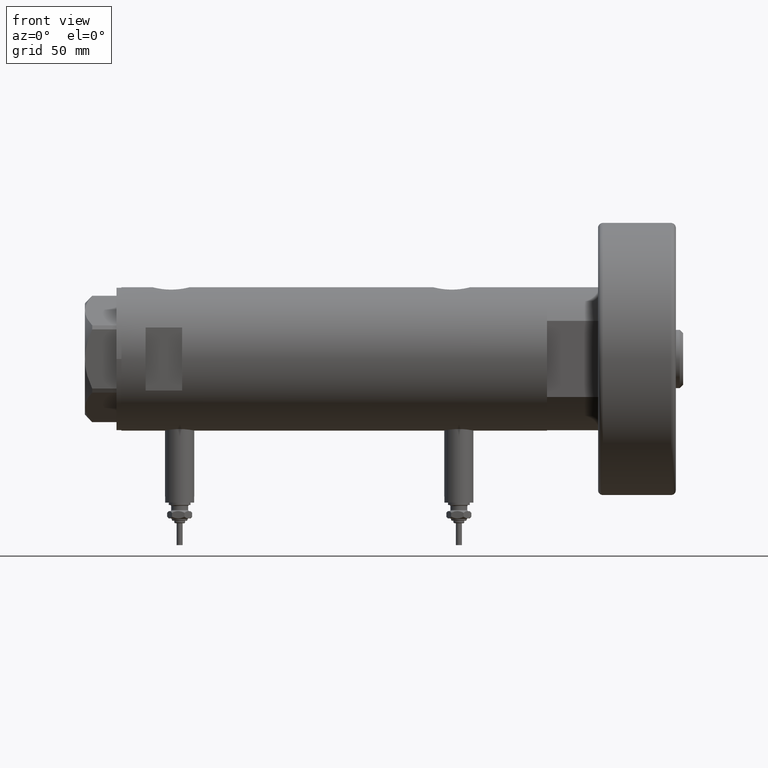
[diagram: clean part render]
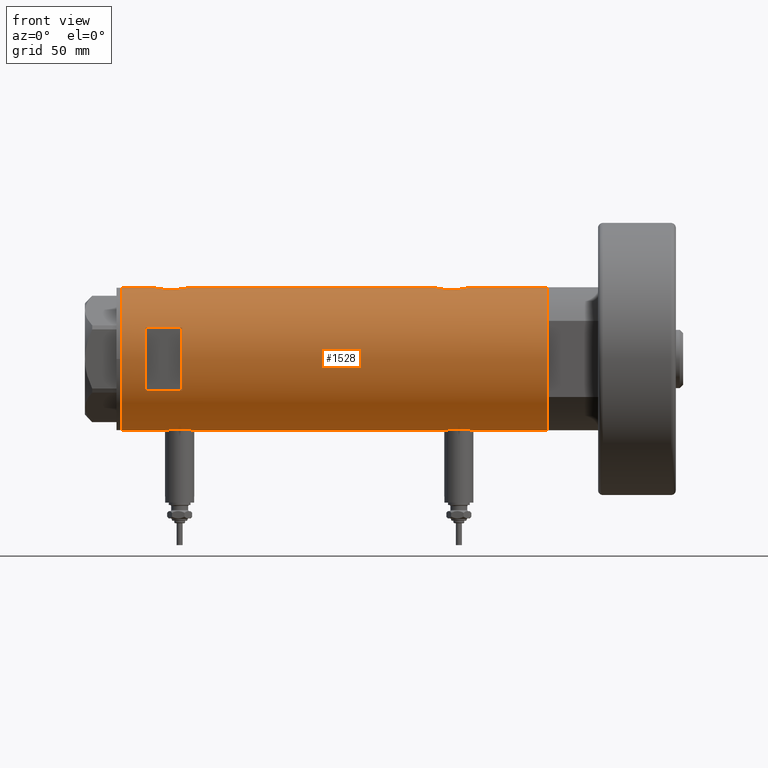
[diagram: same view with one face highlighted and labeled with its STEP entity id]
A machine part, front view. The second image highlights one B-rep face of the part: STEP entity #1528.
In plain terms, the highlighted cylindrical surface (partial cylindrical patch) has radius 29.5 mm, axis along (-1, -0, 0).
Its self-contained STEP definition (entity closure, byte-faithful):
#16 = CARTESIAN_POINT ( 'NONE',  ( 28.86290657878785737, -6.099358034152089658, -52.77130670042607363 ) ) ;
#32 = CARTESIAN_POINT ( 'NONE',  ( 28.55627543367308618, -7.402134446380869370, 68.33219650318235949 ) ) ;
#47 = CARTESIAN_POINT ( 'NONE',  ( 28.98740664105171305, -5.478212189394655596, -53.52819516185792281 ) ) ;
#48 = DIRECTION ( 'NONE',  ( 0.000000000000000000, 0.000000000000000000, 1.000000000000000000 ) ) ;
#56 = CARTESIAN_POINT ( 'NONE',  ( -29.50000000000000355, -1.989795151372050188E-15, -45.04999999999999005 ) ) ;
#81 = CARTESIAN_POINT ( 'NONE',  ( 29.40305664607911140, -2.432276947006147605, -55.51147801006586491 ) ) ;
#82 = CARTESIAN_POINT ( 'NONE',  ( -29.33479068874799722, -3.136645782783865410, 69.02155254614469015 ) ) ;
#111 = CARTESIAN_POINT ( 'NONE',  ( -29.45566469296798928, -1.628675872921093726, 69.63756032628675996 ) ) ;
#117 = CARTESIAN_POINT ( 'NONE',  ( -29.33428005013168871, -3.127775714777722982, -56.71493203872592659 ) ) ;
#124 = CARTESIAN_POINT ( 'NONE',  ( 29.49999999999999289, -0.4976091310423251812, 59.59999999999998721 ) ) ;
#160 = CARTESIAN_POINT ( 'NONE',  ( 28.72151714661535848, -6.735173278284142917, 70.43640470570873902 ) ) ;
#177 = EDGE_CURVE ( 'NONE', #4939, #4916, #5566, .T. ) ;
#183 = CARTESIAN_POINT ( 'NONE',  ( -29.12311479234994849, -4.702282052053738504, -47.17776471113516124 ) ) ;
#208 = CARTESIAN_POINT ( 'NONE',  ( -28.96072448608914840, -5.617106371651694907, 66.37082731660440515 ) ) ;
#267 = CARTESIAN_POINT ( 'NONE',  ( -29.50000000000000355, 3.612706708267620518E-15, -57.55000000000000426 ) ) ;
#286 = ORIENTED_EDGE ( 'NONE', *, *, #2499, .T. ) ;
#359 = EDGE_CURVE ( 'NONE', #1598, #1539, #5720, .T. ) ;
#376 = VECTOR ( 'NONE', #1175, 1000.000000000000000 ) ;
#396 = CARTESIAN_POINT ( 'NONE',  ( 29.50000000000000355, -8.867894669064240341E-21, 74.59999999999999432 ) ) ;
#408 = CARTESIAN_POINT ( 'NONE',  ( -29.50000000000000355, -3.685106651658548747E-16, 69.84999999999999432 ) ) ;
#409 = CARTESIAN_POINT ( 'NONE',  ( 0.000000000000000000, 0.000000000000000000, -87.59999999999999432 ) ) ;
#436 = CARTESIAN_POINT ( 'NONE',  ( 29.08294968506023537, -4.955368226349206040, -42.74903281801533694 ) ) ;
#437 = CARTESIAN_POINT ( 'NONE',  ( -28.85437274499025762, -6.138402965889063978, 62.37243403294917954 ) ) ;
#473 = CARTESIAN_POINT ( 'NONE',  ( -29.37055817176824490, -2.766456155496578084, 57.99186392411088775 ) ) ;
#537 = CARTESIAN_POINT ( 'NONE',  ( 29.05028789344173745, -5.134328181356786480, -53.87246457606267569 ) ) ;
#538 = CARTESIAN_POINT ( 'NONE',  ( -29.25427426731712544, -3.815048240656437439, 58.63259231846663511 ) ) ;
#544 = CARTESIAN_POINT ( 'NONE',  ( -29.49128673965872238, -0.8227026017531590130, -45.09075558927904126 ) ) ;
#572 = ORIENTED_EDGE ( 'NONE', *, *, #4041, .F. ) ;
#577 = CARTESIAN_POINT ( 'NONE',  ( -29.33479068874800433, -3.136645782783870295, -45.87844745385529421 ) ) ;
#600 = CARTESIAN_POINT ( 'NONE',  ( 28.72051071455671334, -6.739402597165489617, -51.72718973703752710 ) ) ;
#608 = CARTESIAN_POINT ( 'NONE',  ( -29.49152014567325253, -0.8152473631539818300, -57.51035294833331335 ) ) ;
#614 = CARTESIAN_POINT ( 'NONE',  ( 28.72051071455672044, -6.739402597165490505, 63.77281026296248712 ) ) ;
#628 = CARTESIAN_POINT ( 'NONE',  ( -29.50000000000000355, -3.685106651658548747E-16, 69.84999999999999432 ) ) ;
#640 = CARTESIAN_POINT ( 'NONE',  ( 28.95592074821773210, -5.641779806288288235, 62.15226504197970314 ) ) ;
#641 = DIRECTION ( 'NONE',  ( -0.000000000000000000, -4.625929269271487689E-15, 1.000000000000000000 ) ) ;
#654 = B_SPLINE_CURVE_WITH_KNOTS ( 'NONE', 3,
 ( #1885, #1462, #2421, #886, #3808, #5752, #1406, #4356, #5277, #920, #436, #2382, #6302, #1954, #657, #5909, #3084, #3437, #1979, #4390, #3467, #5848, #3025, #1497, #2012, #3994, #4960, #600, #4896, #16, #3939, #2070, #47, #537, #5975, #2544, #5016, #5370, #2480, #81, #4028, #4415, #2960, #1045 ),
 .UNSPECIFIED., .F., .F.,
 ( 4, 2, 2, 2, 2, 2, 2, 2, 2, 2, 2, 2, 2, 2, 2, 2, 2, 2, 2, 2, 2, 4 ),
 ( 0.02354540741801906811, 0.02501659793198015777, 0.02648778844594124743, 0.02722338370292179052, 0.02795897895990233362, 0.02943016947386341287, 0.03016576473084396290, 0.03090135998782451293, 0.03237255050178562688, 0.03384374101574673388, 0.03457933627272730126, 0.03531493152970786864, 0.03678612204366901728, 0.03825731255763017286, 0.03972850307159132843, 0.04046409832857190969, 0.04119969358555249095, 0.04193528884253308608, 0.04267088409951366734, 0.04414207461347482986, 0.04561326512743600625, 0.04708445564139716877 ),
 .UNSPECIFIED. ) ;
#657 = CARTESIAN_POINT ( 'NONE',  ( 28.86327882047615034, -6.097569254709688913, -44.02632909088551827 ) ) ;
#666 = CARTESIAN_POINT ( 'NONE',  ( -28.83260549167351527, -6.239494599049535850, -51.71615084301800636 ) ) ;
#685 = LINE ( 'NONE', #4088, #5638 ) ;
#756 = DIRECTION ( 'NONE',  ( 0.000000000000000000, 0.000000000000000000, 1.000000000000000000 ) ) ;
#774 = VERTEX_POINT ( 'NONE', #4273 ) ;
#829 = LINE ( 'NONE', #2300, #2595 ) ;
#886 = CARTESIAN_POINT ( 'NONE',  ( 29.43922820968270671, -1.954457150219038208, -41.14210652754225350 ) ) ;
#920 = CARTESIAN_POINT ( 'NONE',  ( 29.14531914445117522, -4.579221598645967006, -42.44009767007190703 ) ) ;
#939 = DIRECTION ( 'NONE',  ( 0.000000000000000000, 0.000000000000000000, 1.000000000000000000 ) ) ;
#994 = ORIENTED_EDGE ( 'NONE', *, *, #2147, .T. ) ;
#1014 = B_SPLINE_CURVE_WITH_KNOTS ( 'NONE', 3,
 ( #1500, #2834, #1925, #3374, #4897, #5788, #473, #3438, #5371, #538, #1886, #3940, #2866, #3313, #5247, #5757, #3846, #1407, #437, #2383, #4323, #6269, #5976, #3492, #5495, #4509, #208, #3562, #3529, #2545, #4457, #4484, #4545, #5017, #82, #3996, #5427, #2988, #111, #1166, #5524, #2044, #628 ),
 .UNSPECIFIED., .F., .F.,
 ( 4, 2, 2, 2, 2, 2, 2, 2, 2, 1, 2, 2, 2, 2, 2, 2, 2, 2, 2, 2, 2, 4 ),
 ( 0.01959598605283711936, 0.02082041500883364399, 0.02204484396483016861, 0.02265705844282843093, 0.02326927292082668977, 0.02449370187682321787, 0.02571813083281974943, 0.02694255978881627753, 0.02755477426681453290, 0.02816698874481278828, 0.02877920322281106447, 0.02939141770080933719, 0.03061584665680588957, 0.03184027561280244195, 0.03306470456879899433, 0.03367691904679727399, 0.03428913352479554671, 0.03551356248079207134, 0.03673799143678858903, 0.03735020591478684787, 0.03796242039278510672, 0.03918684934878163828 ),
 .UNSPECIFIED. ) ;
#1033 = CARTESIAN_POINT ( 'NONE',  ( 28.95619957017310853, -5.640369376407880608, 72.04939726490175644 ) ) ;
#1035 = DIRECTION ( 'NONE',  ( 1.776356839400250267E-15, 1.000000000000000000, 4.704334850106595203E-15 ) ) ;
#1045 = CARTESIAN_POINT ( 'NONE',  ( 29.50000000000000355, -1.363453657738827866E-15, -55.89999999999999858 ) ) ;
#1052 = ORIENTED_EDGE ( 'NONE', *, *, #1559, .F. ) ;
#1053 = CARTESIAN_POINT ( 'NONE',  ( -29.50000000000000355, 3.612708057484692393E-15, -87.59999999999999432 ) ) ;
#1062 = CARTESIAN_POINT ( 'NONE',  ( 28.59279484545187344, -7.260293545345771982, 65.15593442015531878 ) ) ;
#1071 = DIRECTION ( 'NONE',  ( 0.000000000000000000, 0.000000000000000000, 1.000000000000000000 ) ) ;
#1084 = CARTESIAN_POINT ( 'NONE',  ( -29.05872136210574297, -5.084685578900233871, -47.65990008091242203 ) ) ;
#1094 = CARTESIAN_POINT ( 'NONE',  ( 29.17410189149616428, -4.377709617224024186, 61.00524172523977740 ) ) ;
#1098 = ORIENTED_EDGE ( 'NONE', *, *, #4333, .F. ) ;
#1118 = CARTESIAN_POINT ( 'NONE',  ( -29.37055817176825556, -2.766456155496577196, -56.90813607588912504 ) ) ;
#1145 = CARTESIAN_POINT ( 'NONE',  ( -28.99856997507319534, -5.420860550814444956, -54.43723012145802187 ) ) ;
#1166 = CARTESIAN_POINT ( 'NONE',  ( -29.46613381094001127, -1.427468570127964798, 69.68827540540398502 ) ) ;
#1175 = DIRECTION ( 'NONE',  ( 0.000000000000000000, 0.000000000000000000, 1.000000000000000000 ) ) ;
#1341 = VERTEX_POINT ( 'NONE', #5210 ) ;
#1356 = CARTESIAN_POINT ( 'NONE',  ( -29.50000000000000355, 3.612708057484692393E-15, -87.59999999999999432 ) ) ;
#1390 = CARTESIAN_POINT ( 'NONE',  ( 29.40378957563274298, -2.423455993307769951, 74.21449460115982788 ) ) ;
#1406 = CARTESIAN_POINT ( 'NONE',  ( 29.31311917412636348, -3.322476152549152406, -41.67157014735705189 ) ) ;
#1407 = CARTESIAN_POINT ( 'NONE',  ( -28.87532468301956712, -6.038983942005351047, 61.97670632311463379 ) ) ;
#1441 = ORIENTED_EDGE ( 'NONE', *, *, #2223, .F. ) ;
#1449 = DIRECTION ( 'NONE',  ( -0.000000000000000000, 0.000000000000000000, -1.000000000000000000 ) ) ;
#1462 = CARTESIAN_POINT ( 'NONE',  ( 29.50000000000001066, -0.4905639552620955079, -40.89999999999999858 ) ) ;
#1497 = CARTESIAN_POINT ( 'NONE',  ( 28.53064705443910043, -7.500145243772282200, -48.89244703291117844 ) ) ;
#1500 = CARTESIAN_POINT ( 'NONE',  ( -29.50000000000000355, 3.612706708236066082E-15, 57.34999999999998721 ) ) ;
#1517 = CARTESIAN_POINT ( 'NONE',  ( 28.54347630091234933, -7.451827970232792531, 66.11943218216043761 ) ) ;
#1528 = ADVANCED_FACE ( 'NONE', ( #4833, #5305 ), #5816, .T. ) ;
#1539 = VERTEX_POINT ( 'NONE', #1980 ) ;
#1542 = CARTESIAN_POINT ( 'NONE',  ( -29.46613381094001483, -1.427468570127977010, -45.21172459459599935 ) ) ;
#1559 = EDGE_CURVE ( 'NONE', #1539, #5188, #1014, .T. ) ;
#1574 = CARTESIAN_POINT ( 'NONE',  ( 29.23250901027695647, -3.968959760999262176, 73.46846017287660402 ) ) ;
#1598 = VERTEX_POINT ( 'NONE', #3060 ) ;
#1608 = CARTESIAN_POINT ( 'NONE',  ( 29.14531914445117167, -4.579221598645962565, 73.05990232992806455 ) ) ;
#1632 = CARTESIAN_POINT ( 'NONE',  ( -28.84137202824161861, -6.198846007008993908, -52.12388261123874145 ) ) ;
#1661 = ORIENTED_EDGE ( 'NONE', *, *, #5019, .F. ) ;
#1665 = VERTEX_POINT ( 'NONE', #3247 ) ;
#1707 = ORIENTED_EDGE ( 'NONE', *, *, #177, .F. ) ;
#1785 = ORIENTED_EDGE ( 'NONE', *, *, #2032, .T. ) ;
#1789 = CIRCLE ( 'NONE', #4212, 29.50000000000000355 ) ;
#1867 = CARTESIAN_POINT ( 'NONE',  ( 0.000000000000000000, 0.000000000000000000, 77.60000000000002274 ) ) ;
#1871 = CARTESIAN_POINT ( 'NONE',  ( 29.43922820968270671, -1.954457150219034434, 74.35789347245773229 ) ) ;
#1885 = CARTESIAN_POINT ( 'NONE',  ( 29.50000000000000355, -8.867894669064240341E-21, -40.89999999999999858 ) ) ;
#1886 = CARTESIAN_POINT ( 'NONE',  ( -29.21108587560690495, -4.128853169727751293, 58.89032723090409149 ) ) ;
#1925 = CARTESIAN_POINT ( 'NONE',  ( -29.49152014567325253, -0.8152473631539829402, 57.38964705166666391 ) ) ;
#1941 = ORIENTED_EDGE ( 'NONE', *, *, #2762, .F. ) ;
#1954 = CARTESIAN_POINT ( 'NONE',  ( 28.89374408016308848, -5.952042782108791563, -43.83015462974033483 ) ) ;
#1979 = CARTESIAN_POINT ( 'NONE',  ( 28.59337635119608123, -7.258007499531542450, -46.44783774348638872 ) ) ;
#1980 = CARTESIAN_POINT ( 'NONE',  ( -29.50000000000000355, 3.612706708236066082E-15, 57.34999999999998721 ) ) ;
#1983 = VERTEX_POINT ( 'NONE', #4021 ) ;
#1997 = CARTESIAN_POINT ( 'NONE',  ( 28.59337635119608123, -7.258007499531540674, 69.05216225651359707 ) ) ;
#2008 = AXIS2_PLACEMENT_3D ( 'NONE', #5964, #2782, #6093 ) ;
#2012 = CARTESIAN_POINT ( 'NONE',  ( 28.54347630091233867, -7.451827970232786313, -49.38056781783959792 ) ) ;
#2021 = CARTESIAN_POINT ( 'NONE',  ( -28.89999183068148625, -5.919812056825922042, -53.31500238835418060 ) ) ;
#2032 = EDGE_CURVE ( 'NONE', #4362, #774, #5010, .T. ) ;
#2044 = CARTESIAN_POINT ( 'NONE',  ( -29.50000000000000000, -0.4141077724969871032, 69.85000000000000853 ) ) ;
#2050 = CARTESIAN_POINT ( 'NONE',  ( -29.45566469296797507, -1.628675872921105938, -45.26243967371323862 ) ) ;
#2070 = CARTESIAN_POINT ( 'NONE',  ( 28.95592074821772854, -5.641779806288289123, -53.34773495802030396 ) ) ;
#2077 = VERTEX_POINT ( 'NONE', #267 ) ;
#2078 = CARTESIAN_POINT ( 'NONE',  ( -29.21016169868139656, -4.135295259288792380, -46.59609911913489810 ) ) ;
#2124 = CARTESIAN_POINT ( 'NONE',  ( 29.48742104091791560, -0.9879539515379935910, 59.64904301646021167 ) ) ;
#2128 = VERTEX_POINT ( 'NONE', #1356 ) ;
#2145 = EDGE_LOOP ( 'NONE', ( #1941, #994, #1785, #2324, #286, #1441, #3477, #572, #6246, #1052, #2366, #1661 ) ) ;
#2146 = CARTESIAN_POINT ( 'NONE',  ( -29.45797511864983420, -1.625450914296657334, -57.34905127530046087 ) ) ;
#2147 = EDGE_CURVE ( 'NONE', #2128, #4362, #5322, .T. ) ;
#2223 = EDGE_CURVE ( 'NONE', #1341, #1665, #5636, .T. ) ;
#2251 = CARTESIAN_POINT ( 'NONE',  ( 29.50000000000000355, 0.000000000000000000, -87.59999999999999432 ) ) ;
#2300 = CARTESIAN_POINT ( 'NONE',  ( 29.50000000000000355, 0.000000000000000000, -87.59999999999999432 ) ) ;
#2324 = ORIENTED_EDGE ( 'NONE', *, *, #5288, .F. ) ;
#2332 = VERTEX_POINT ( 'NONE', #2439 ) ;
#2346 = CARTESIAN_POINT ( 'NONE',  ( 29.48775985681159284, -0.9798361908152555255, 74.55230443881325186 ) ) ;
#2366 = ORIENTED_EDGE ( 'NONE', *, *, #359, .F. ) ;
#2371 = CARTESIAN_POINT ( 'NONE',  ( 29.50000000000001066, -0.4905639552620957300, 74.59999999999998010 ) ) ;
#2382 = CARTESIAN_POINT ( 'NONE',  ( 28.98816846638396072, -5.474212100855873508, -43.26747840116693311 ) ) ;
#2383 = CARTESIAN_POINT ( 'NONE',  ( -28.84137202824161150, -6.198846007008987691, 62.77611738876123582 ) ) ;
#2401 = CARTESIAN_POINT ( 'NONE',  ( 29.50000000000000355, 0.000000000000000000, -87.59999999999999432 ) ) ;
#2421 = CARTESIAN_POINT ( 'NONE',  ( 29.48775985681159284, -0.9798361908152568578, -40.94769556118675524 ) ) ;
#2439 = CARTESIAN_POINT ( 'NONE',  ( -12.96148139681573319, -26.49999999999998934, 62.59999999999998721 ) ) ;
#2442 = CARTESIAN_POINT ( 'NONE',  ( 29.31311917412636348, -3.322476152549144413, 73.82842985264291258 ) ) ;
#2480 = CARTESIAN_POINT ( 'NONE',  ( 29.31438578683259522, -3.335040812377227937, -55.13547276843772238 ) ) ;
#2486 = CARTESIAN_POINT ( 'NONE',  ( -29.50000000000000355, 3.612706708267620518E-15, -57.55000000000000426 ) ) ;
#2499 = EDGE_CURVE ( 'NONE', #2683, #1665, #829, .T. ) ;
#2532 = CARTESIAN_POINT ( 'NONE',  ( 29.05028789344172324, -5.134328181356783816, 61.62753542393731010 ) ) ;
#2544 = CARTESIAN_POINT ( 'NONE',  ( 29.14351131874355261, -4.576283785862462317, -54.34705324848517449 ) ) ;
#2545 = CARTESIAN_POINT ( 'NONE',  ( -29.08006251441183565, -4.961575945539723698, 67.40618502052524263 ) ) ;
#2551 = CARTESIAN_POINT ( 'NONE',  ( -28.83028160285195440, -6.250189016175739631, -50.89032996785321927 ) ) ;
#2558 = CARTESIAN_POINT ( 'NONE',  ( 29.40305664607911140, -2.432276947006145829, 59.98852198993411378 ) ) ;
#2578 = CARTESIAN_POINT ( 'NONE',  ( -28.91427970886711307, -5.849862889315922132, -53.50993133128852008 ) ) ;
#2587 = CARTESIAN_POINT ( 'NONE',  ( 29.14351131874355971, -4.576283785862454323, 61.15294675151478287 ) ) ;
#2595 = VECTOR ( 'NONE', #2904, 1000.000000000000000 ) ;
#2613 = CARTESIAN_POINT ( 'NONE',  ( -28.96072448608914485, -5.617106371651703789, -48.52917268339558632 ) ) ;
#2683 = VERTEX_POINT ( 'NONE', #4572 ) ;
#2708 = VECTOR ( 'NONE', #2864, 1000.000000000000000 ) ;
#2715 = ORIENTED_EDGE ( 'NONE', *, *, #2721, .F. ) ;
#2719 = CARTESIAN_POINT ( 'NONE',  ( -29.50000000000000355, 3.612708057484692393E-15, 87.59999999999999432 ) ) ;
#2721 = EDGE_CURVE ( 'NONE', #5311, #2332, #5169, .T. ) ;
#2729 = EDGE_CURVE ( 'NONE', #1341, #1983, #4629, .T. ) ;
#2762 = EDGE_CURVE ( 'NONE', #2128, #2077, #685, .T. ) ;
#2782 = DIRECTION ( 'NONE',  ( 0.000000000000000000, 0.000000000000000000, 1.000000000000000000 ) ) ;
#2789 = AXIS2_PLACEMENT_3D ( 'NONE', #5296, #939, #4760 ) ;
#2834 = CARTESIAN_POINT ( 'NONE',  ( -29.50000000000000711, -0.4084468586314314309, 57.35000000000000142 ) ) ;
#2864 = DIRECTION ( 'NONE',  ( 0.000000000000000000, 0.000000000000000000, 1.000000000000000000 ) ) ;
#2866 = CARTESIAN_POINT ( 'NONE',  ( -29.07948744859177026, -4.968520850090769159, 59.78663632621105961 ) ) ;
#2880 = EDGE_CURVE ( 'NONE', #2332, #4939, #1789, .T. ) ;
#2892 = DIRECTION ( 'NONE',  ( 1.000000000000000000, 0.000000000000000000, 0.000000000000000000 ) ) ;
#2900 = VERTEX_POINT ( 'NONE', #2719 ) ;
#2904 = DIRECTION ( 'NONE',  ( 0.000000000000000000, 0.000000000000000000, 1.000000000000000000 ) ) ;
#2960 = CARTESIAN_POINT ( 'NONE',  ( 29.50000000000000711, -0.4976091310423220726, -55.89999999999999858 ) ) ;
#2977 = CARTESIAN_POINT ( 'NONE',  ( 29.50000000000000355, -2.136503572369537054E-15, 59.59999999999999432 ) ) ;
#2988 = CARTESIAN_POINT ( 'NONE',  ( -29.43130053621386111, -2.021711243143687664, 69.51755045960182144 ) ) ;
#3006 = CARTESIAN_POINT ( 'NONE',  ( 28.89374847711160754, -5.952001739005052805, 62.53016018920364161 ) ) ;
#3023 = B_SPLINE_CURVE_WITH_KNOTS ( 'NONE', 3,
 ( #2486, #5890, #608, #2146, #3535, #5379, #1118, #117, #4073, #5470, #4516, #3065, #4933, #1145, #5982, #2578, #2021, #3500, #4998, #1632, #666, #3567, #2551, #3947, #4489, #4002, #2613, #5500, #1084, #4552, #183, #4967, #2078, #6013, #577, #3445, #4905, #5947, #2050, #1542, #544, #4424, #56 ),
 .UNSPECIFIED., .F., .F.,
 ( 4, 2, 2, 2, 2, 2, 2, 2, 2, 1, 2, 2, 2, 2, 2, 2, 2, 2, 2, 2, 2, 4 ),
 ( 0.01959598605283713324, 0.02082041500883365093, 0.02204484396483016515, 0.02265705844282842399, 0.02326927292082667936, 0.02449370187682318317, 0.02571813083281968698, 0.02694255978881619079, 0.02755477426681445310, 0.02816698874481271542, 0.02877920322281097426, 0.02939141770080923657, 0.03061584665680577855, 0.03184027561280232399, 0.03306470456879886943, 0.03367691904679714215, 0.03428913352479541488, 0.03551356248079197420, 0.03673799143678854046, 0.03735020591478682705, 0.03796242039278510672, 0.03918684934878167297 ),
 .UNSPECIFIED. ) ;
#3025 = CARTESIAN_POINT ( 'NONE',  ( 28.53070445389874976, -7.499926890973428684, -48.15046579487084699 ) ) ;
#3043 = CARTESIAN_POINT ( 'NONE',  ( 28.62983003203746435, -7.114781472982441457, 64.67726941146263187 ) ) ;
#3060 = CARTESIAN_POINT ( 'NONE',  ( -29.50000000000000355, -1.989795151372050188E-15, -45.04999999999999005 ) ) ;
#3065 = CARTESIAN_POINT ( 'NONE',  ( -29.12379578281189296, -4.705261494361431041, -55.43387957720276660 ) ) ;
#3071 = CARTESIAN_POINT ( 'NONE',  ( 28.98816846638396427, -5.474212100855878838, 72.23252159883305978 ) ) ;
#3084 = CARTESIAN_POINT ( 'NONE',  ( 28.72151714661536204, -6.735173278284145582, -45.06359529429126098 ) ) ;
#3103 = CARTESIAN_POINT ( 'NONE',  ( -12.96148139681573319, -26.49999999999999645, -87.59999999999999432 ) ) ;
#3247 = CARTESIAN_POINT ( 'NONE',  ( 29.50000000000000355, -2.136503572369537054E-15, 59.59999999999999432 ) ) ;
#3313 = CARTESIAN_POINT ( 'NONE',  ( -28.99856997507319534, -5.420860550814439627, 60.46276987854197671 ) ) ;
#3325 = CIRCLE ( 'NONE', #2008, 29.50000000000000355 ) ;
#3328 = EDGE_LOOP ( 'NONE', ( #3471, #2715, #1098, #1707 ) ) ;
#3374 = CARTESIAN_POINT ( 'NONE',  ( -29.45797511864983420, -1.625450914296658667, 57.55094872469953060 ) ) ;
#3404 = VECTOR ( 'NONE', #6096, 1000.000000000000000 ) ;
#3437 = CARTESIAN_POINT ( 'NONE',  ( 28.62986945670068550, -7.114680680403729696, -45.97606223993307850 ) ) ;
#3438 = CARTESIAN_POINT ( 'NONE',  ( -29.33428005013169226, -3.127775714777723426, 58.18506796127407199 ) ) ;
#3445 = CARTESIAN_POINT ( 'NONE',  ( -29.37136442049237317, -2.777615426151012201, -45.68634887377884013 ) ) ;
#3457 = CARTESIAN_POINT ( 'NONE',  ( 28.98740664105171660, -5.478212189394656484, 61.97180483814205587 ) ) ;
#3467 = CARTESIAN_POINT ( 'NONE',  ( 28.54678862679669038, -7.438514536388029619, -47.41041725679210828 ) ) ;
#3471 = ORIENTED_EDGE ( 'NONE', *, *, #2880, .F. ) ;
#3477 = ORIENTED_EDGE ( 'NONE', *, *, #2729, .T. ) ;
#3492 = CARTESIAN_POINT ( 'NONE',  ( -28.83909499632370199, -6.209928350489659188, 64.41617781082960903 ) ) ;
#3500 = CARTESIAN_POINT ( 'NONE',  ( -28.87532468301956357, -6.038983942005355487, -52.92329367688535768 ) ) ;
#3511 = CARTESIAN_POINT ( 'NONE',  ( 28.53399451186755087, -7.487442594623177961, 67.59897485501115000 ) ) ;
#3529 = CARTESIAN_POINT ( 'NONE',  ( -29.05872136210575363, -5.084685578900223213, 67.24009991908759787 ) ) ;
#3535 = CARTESIAN_POINT ( 'NONE',  ( -29.43333839972900634, -2.017691896334575574, -57.22935989047839200 ) ) ;
#3562 = CARTESIAN_POINT ( 'NONE',  ( -28.99772237063718094, -5.425436006677728074, 66.72962674552641715 ) ) ;
#3567 = CARTESIAN_POINT ( 'NONE',  ( -28.83034328164761462, -6.249904501012249369, -51.50914539564058003 ) ) ;
#3608 = DIRECTION ( 'NONE',  ( 0.000000000000000000, 0.000000000000000000, 1.000000000000000000 ) ) ;
#3808 = CARTESIAN_POINT ( 'NONE',  ( 29.40378957563275009, -2.423455993307766398, -41.28550539884014370 ) ) ;
#3846 = CARTESIAN_POINT ( 'NONE',  ( -28.89999183068147559, -5.919812056825914048, 61.58499761164581798 ) ) ;
#3923 = CARTESIAN_POINT ( 'NONE',  ( 28.53064705443911464, -7.500145243772284864, 66.60755296708883577 ) ) ;
#3939 = CARTESIAN_POINT ( 'NONE',  ( 28.89374847711160399, -5.952001739005051917, -52.96983981079635129 ) ) ;
#3940 = CARTESIAN_POINT ( 'NONE',  ( -29.12379578281188586, -4.705261494361431041, 59.46612042279722488 ) ) ;
#3947 = CARTESIAN_POINT ( 'NONE',  ( -28.83909499632370199, -6.209928350489668958, -50.48382218917042508 ) ) ;
#3994 = CARTESIAN_POINT ( 'NONE',  ( 28.59279484545186989, -7.260293545345763100, -50.34406557984473096 ) ) ;
#3996 = CARTESIAN_POINT ( 'NONE',  ( -29.37136442049236962, -2.777615426151009981, 69.21365112622116555 ) ) ;
#4002 = CARTESIAN_POINT ( 'NONE',  ( -28.89828397447510255, -5.929977241120610643, -49.28388047758001989 ) ) ;
#4012 = CARTESIAN_POINT ( 'NONE',  ( 29.26166309680877475, -3.765013078516707967, 60.59489767946936212 ) ) ;
#4021 = CARTESIAN_POINT ( 'NONE',  ( 29.50000000000000355, 0.000000000000000000, 87.59999999999999432 ) ) ;
#4028 = CARTESIAN_POINT ( 'NONE',  ( 29.43916859571211120, -1.954329820671499407, -55.65764479242087504 ) ) ;
#4041 = EDGE_CURVE ( 'NONE', #2900, #1983, #3325, .T. ) ;
#4048 = CARTESIAN_POINT ( 'NONE',  ( 28.53070445389874621, -7.499926890973428684, 67.34953420512916011 ) ) ;
#4073 = CARTESIAN_POINT ( 'NONE',  ( -29.31475612970062627, -3.305202271067059883, -56.60847868843855224 ) ) ;
#4088 = CARTESIAN_POINT ( 'NONE',  ( -29.50000000000000355, 3.612708057484692393E-15, -87.59999999999999432 ) ) ;
#4110 = VECTOR ( 'NONE', #5044, 1000.000000000000000 ) ;
#4212 = AXIS2_PLACEMENT_3D ( 'NONE', #5510, #641, #1035 ) ;
#4273 = CARTESIAN_POINT ( 'NONE',  ( 29.50000000000000355, -1.363453657738827866E-15, -55.89999999999999858 ) ) ;
#4323 = CARTESIAN_POINT ( 'NONE',  ( -28.83260549167351527, -6.239494599049532297, 63.18384915698199933 ) ) ;
#4333 = EDGE_CURVE ( 'NONE', #4916, #5311, #4336, .T. ) ;
#4336 = CIRCLE ( 'NONE', #4846, 29.50000000000000355 ) ;
#4356 = CARTESIAN_POINT ( 'NONE',  ( 29.26065241255352589, -3.756597382275444819, -41.90395565180811133 ) ) ;
#4362 = VERTEX_POINT ( 'NONE', #2401 ) ;
#4390 = CARTESIAN_POINT ( 'NONE',  ( 28.55627543367308618, -7.402134446380870259, -47.16780349681763340 ) ) ;
#4404 = CARTESIAN_POINT ( 'NONE',  ( 28.86327882047615034, -6.097569254709694242, 71.47367090911446041 ) ) ;
#4415 = CARTESIAN_POINT ( 'NONE',  ( 29.48742104091792982, -0.9879539515379943682, -55.85095698353980964 ) ) ;
#4424 = CARTESIAN_POINT ( 'NONE',  ( -29.50000000000000711, -0.4141077724969866591, -45.04999999999999005 ) ) ;
#4457 = CARTESIAN_POINT ( 'NONE',  ( -29.12311479234994493, -4.702282052053730510, 67.72223528886479471 ) ) ;
#4463 = LINE ( 'NONE', #1053, #376 ) ;
#4471 = CARTESIAN_POINT ( 'NONE',  ( 29.43916859571210409, -1.954329820671502960, 59.84235520757910365 ) ) ;
#4483 = CARTESIAN_POINT ( 'NONE',  ( -12.96148139681573319, -26.49999999999998934, 77.60000000000002274 ) ) ;
#4484 = CARTESIAN_POINT ( 'NONE',  ( -29.14490888978862770, -4.565669626908225531, 67.87298179876214022 ) ) ;
#4489 = CARTESIAN_POINT ( 'NONE',  ( -28.87288655002252113, -6.050870399762851015, -49.68249459278194990 ) ) ;
#4509 = CARTESIAN_POINT ( 'NONE',  ( -28.89828397447510255, -5.929977241120604425, 65.61611952241995027 ) ) ;
#4516 = CARTESIAN_POINT ( 'NONE',  ( -29.21108587560690495, -4.128853169727750405, -56.00967276909590709 ) ) ;
#4526 = CARTESIAN_POINT ( 'NONE',  ( 29.31438578683260232, -3.335040812377226604, 60.36452723156224920 ) ) ;
#4535 = CARTESIAN_POINT ( 'NONE',  ( 29.50000000000000355, 0.000000000000000000, -87.59999999999999432 ) ) ;
#4545 = CARTESIAN_POINT ( 'NONE',  ( -29.21016169868140366, -4.135295259288787051, 68.30390088086507205 ) ) ;
#4552 = CARTESIAN_POINT ( 'NONE',  ( -29.08006251441182854, -4.961575945539730803, -47.49381497947474884 ) ) ;
#4572 = CARTESIAN_POINT ( 'NONE',  ( 29.50000000000000355, -8.867894669064240341E-21, -40.89999999999999858 ) ) ;
#4629 = LINE ( 'NONE', #2251, #4110 ) ;
#4760 = DIRECTION ( 'NONE',  ( 1.000000000000000000, 0.000000000000000000, 0.000000000000000000 ) ) ;
#4782 = CARTESIAN_POINT ( 'NONE',  ( 12.96148139681573319, -26.49999999999998934, 77.60000000000002274 ) ) ;
#4810 = CARTESIAN_POINT ( 'NONE',  ( 12.96148139681573319, -26.49999999999998934, 62.59999999999998721 ) ) ;
#4833 = FACE_OUTER_BOUND ( 'NONE', #2145, .T. ) ;
#4846 = AXIS2_PLACEMENT_3D ( 'NONE', #1867, #1449, #6217 ) ;
#4854 = CARTESIAN_POINT ( 'NONE',  ( 29.33743940633120673, -3.100990836771692294, 73.93327512439066140 ) ) ;
#4896 = CARTESIAN_POINT ( 'NONE',  ( 28.77424839213763264, -6.509286280845835826, -52.15781251605955759 ) ) ;
#4897 = CARTESIAN_POINT ( 'NONE',  ( -29.43333839972900634, -2.017691896334577351, 57.67064010952157105 ) ) ;
#4905 = CARTESIAN_POINT ( 'NONE',  ( -29.41741605749266952, -2.213861184585005137, -45.45168825548628178 ) ) ;
#4916 = VERTEX_POINT ( 'NONE', #4782 ) ;
#4933 = CARTESIAN_POINT ( 'NONE',  ( -29.07948744859177381, -4.968520850090770935, -55.11336367378893186 ) ) ;
#4939 = VERTEX_POINT ( 'NONE', #4810 ) ;
#4960 = CARTESIAN_POINT ( 'NONE',  ( 28.62983003203746080, -7.114781472982439681, -50.82273058853737524 ) ) ;
#4967 = CARTESIAN_POINT ( 'NONE',  ( -29.14490888978862415, -4.565669626908229084, -47.02701820123782994 ) ) ;
#4978 = CARTESIAN_POINT ( 'NONE',  ( 28.77424839213764329, -6.509286280845849149, 63.34218748394043530 ) ) ;
#4998 = CARTESIAN_POINT ( 'NONE',  ( -28.85437274499025406, -6.138402965889069307, -52.52756596705081904 ) ) ;
#5004 = CARTESIAN_POINT ( 'NONE',  ( 28.77541267587657003, -6.504036106227640168, 70.86628550135910132 ) ) ;
#5010 = LINE ( 'NONE', #4535, #5224 ) ;
#5016 = CARTESIAN_POINT ( 'NONE',  ( 29.17410189149616428, -4.377709617224021521, -54.49475827476019418 ) ) ;
#5017 = CARTESIAN_POINT ( 'NONE',  ( -29.25361239466581154, -3.820294933898098488, 68.56357989714038581 ) ) ;
#5019 = EDGE_CURVE ( 'NONE', #2077, #1598, #3023, .T. ) ;
#5044 = DIRECTION ( 'NONE',  ( 0.000000000000000000, 0.000000000000000000, 1.000000000000000000 ) ) ;
#5060 = EDGE_CURVE ( 'NONE', #5188, #2900, #4463, .T. ) ;
#5139 = VECTOR ( 'NONE', #756, 1000.000000000000000 ) ;
#5169 = LINE ( 'NONE', #3103, #3404 ) ;
#5188 = VERTEX_POINT ( 'NONE', #408 ) ;
#5210 = CARTESIAN_POINT ( 'NONE',  ( 29.50000000000000355, -8.867894669064240341E-21, 74.59999999999999432 ) ) ;
#5224 = VECTOR ( 'NONE', #1071, 1000.000000000000000 ) ;
#5244 = CARTESIAN_POINT ( 'NONE',  ( -29.50000000000000355, 3.612708057484692393E-15, -87.59999999999999432 ) ) ;
#5247 = CARTESIAN_POINT ( 'NONE',  ( -28.96147498926091046, -5.613273026676365518, 60.82107301657418930 ) ) ;
#5277 = CARTESIAN_POINT ( 'NONE',  ( 29.23250901027695647, -3.968959760999266617, -42.03153982712338177 ) ) ;
#5288 = EDGE_CURVE ( 'NONE', #2683, #774, #654, .T. ) ;
#5296 = CARTESIAN_POINT ( 'NONE',  ( 0.000000000000000000, 0.000000000000000000, -87.59999999999999432 ) ) ;
#5305 = FACE_BOUND ( 'NONE', #3328, .T. ) ;
#5311 = VERTEX_POINT ( 'NONE', #4483 ) ;
#5322 = CIRCLE ( 'NONE', #2789, 29.50000000000000355 ) ;
#5357 = CARTESIAN_POINT ( 'NONE',  ( 28.86290657878784671, -6.099358034152101204, 62.72869329957394058 ) ) ;
#5370 = CARTESIAN_POINT ( 'NONE',  ( 29.26166309680877475, -3.765013078516705303, -54.90510232053061657 ) ) ;
#5371 = CARTESIAN_POINT ( 'NONE',  ( -29.31475612970062983, -3.305202271067059439, 58.29152131156144634 ) ) ;
#5379 = CARTESIAN_POINT ( 'NONE',  ( -29.38738983525001558, -2.582042051636497693, -56.99535171595380945 ) ) ;
#5388 = CARTESIAN_POINT ( 'NONE',  ( 29.08168479815707386, -4.954011967599708299, 61.46372631484727833 ) ) ;
#5414 = CARTESIAN_POINT ( 'NONE',  ( 29.08294968506023181, -4.955368226349210481, 72.75096718198464885 ) ) ;
#5427 = CARTESIAN_POINT ( 'NONE',  ( -29.41741605749265887, -2.213861184585002917, 69.44831174451371680 ) ) ;
#5448 = CARTESIAN_POINT ( 'NONE',  ( 28.62986945670069261, -7.114680680403731472, 69.52393776006691439 ) ) ;
#5470 = CARTESIAN_POINT ( 'NONE',  ( -29.25427426731712188, -3.815048240656438772, -56.26740768153337058 ) ) ;
#5495 = CARTESIAN_POINT ( 'NONE',  ( -28.87288655002252113, -6.050870399762837692, 65.21750540721804157 ) ) ;
#5500 = CARTESIAN_POINT ( 'NONE',  ( -28.99772237063718094, -5.425436006677739620, -48.17037325447357432 ) ) ;
#5510 = CARTESIAN_POINT ( 'NONE',  ( 0.000000000000000000, 0.000000000000000000, 62.60000000000011511 ) ) ;
#5524 = CARTESIAN_POINT ( 'NONE',  ( -29.49128673965871172, -0.8227026017531454682, 69.80924441072093600 ) ) ;
#5566 = LINE ( 'NONE', #5623, #5139 ) ;
#5623 = CARTESIAN_POINT ( 'NONE',  ( 12.96148139681573319, -26.49999999999999645, -87.59999999999999432 ) ) ;
#5636 = B_SPLINE_CURVE_WITH_KNOTS ( 'NONE', 3,
 ( #396, #2371, #2346, #1871, #1390, #4854, #2442, #5924, #1574, #1608, #5414, #3071, #1033, #5868, #4404, #5004, #160, #5448, #1997, #32, #5993, #3511, #4048, #3923, #1517, #1062, #3043, #614, #4978, #5357, #3006, #640, #3457, #2532, #5388, #2587, #1094, #4012, #4526, #2558, #4471, #2124, #124, #2977 ),
 .UNSPECIFIED., .F., .F.,
 ( 4, 2, 2, 2, 2, 2, 2, 2, 2, 2, 2, 2, 2, 2, 2, 2, 2, 2, 2, 2, 2, 4 ),
 ( 0.02354540741801906811, 0.02501659793198017859, 0.02648778844594128906, 0.02722338370292184256, 0.02795897895990239954, 0.02943016947386351001, 0.03016576473084408433, 0.03090135998782465171, 0.03237255050178579341, 0.03384374101574693511, 0.03457933627272750943, 0.03531493152970807681, 0.03678612204366921851, 0.03825731255763036021, 0.03972850307159149497, 0.04046409832857204847, 0.04119969358555261585, 0.04193528884253318323, 0.04267088409951375061, 0.04414207461347488537, 0.04561326512743602707, 0.04708445564139716183 ),
 .UNSPECIFIED. ) ;
#5638 = VECTOR ( 'NONE', #3608, 1000.000000000000000 ) ;
#5720 = LINE ( 'NONE', #5244, #2708 ) ;
#5752 = CARTESIAN_POINT ( 'NONE',  ( 29.33743940633121028, -3.100990836771690073, -41.56672487560935281 ) ) ;
#5757 = CARTESIAN_POINT ( 'NONE',  ( -28.91427970886709886, -5.849862889315915915, 61.39006866871145718 ) ) ;
#5788 = CARTESIAN_POINT ( 'NONE',  ( -29.38738983525000137, -2.582042051636497693, 57.90464828404618913 ) ) ;
#5816 = CYLINDRICAL_SURFACE ( 'NONE', #6044, 29.50000000000000355 ) ;
#5848 = CARTESIAN_POINT ( 'NONE',  ( 28.53399451186755442, -7.487442594623181513, -47.90102514498886421 ) ) ;
#5868 = CARTESIAN_POINT ( 'NONE',  ( 28.89374408016309914, -5.952042782108793340, 71.66984537025965096 ) ) ;
#5890 = CARTESIAN_POINT ( 'NONE',  ( -29.50000000000000711, -0.4084468586314279337, -57.55000000000000426 ) ) ;
#5909 = CARTESIAN_POINT ( 'NONE',  ( 28.77541267587658780, -6.504036106227640168, -44.63371449864085605 ) ) ;
#5924 = CARTESIAN_POINT ( 'NONE',  ( 29.26065241255351523, -3.756597382275435493, 73.59604434819190999 ) ) ;
#5947 = CARTESIAN_POINT ( 'NONE',  ( -29.43130053621386111, -2.021711243143700543, -45.38244954039817003 ) ) ;
#5964 = CARTESIAN_POINT ( 'NONE',  ( 0.000000000000000000, 0.000000000000000000, 87.59999999999999432 ) ) ;
#5975 = CARTESIAN_POINT ( 'NONE',  ( 29.08168479815708451, -4.954011967599717181, -54.03627368515270035 ) ) ;
#5976 = CARTESIAN_POINT ( 'NONE',  ( -28.83028160285196151, -6.250189016175732526, 64.00967003214678641 ) ) ;
#5982 = CARTESIAN_POINT ( 'NONE',  ( -28.96147498926092112, -5.613273026676372623, -54.07892698342580218 ) ) ;
#5993 = CARTESIAN_POINT ( 'NONE',  ( 28.54678862679669749, -7.438514536388028731, 68.08958274320792725 ) ) ;
#6013 = CARTESIAN_POINT ( 'NONE',  ( -29.25361239466581154, -3.820294933898107814, -46.33642010285959145 ) ) ;
#6044 = AXIS2_PLACEMENT_3D ( 'NONE', #409, #48, #2892 ) ;
#6093 = DIRECTION ( 'NONE',  ( 1.000000000000000000, 0.000000000000000000, 0.000000000000000000 ) ) ;
#6096 = DIRECTION ( 'NONE',  ( -0.000000000000000000, -0.000000000000000000, -1.000000000000000000 ) ) ;
#6217 = DIRECTION ( 'NONE',  ( 1.000000000000000000, 0.000000000000000000, 0.000000000000000000 ) ) ;
#6246 = ORIENTED_EDGE ( 'NONE', *, *, #5060, .F. ) ;
#6269 = CARTESIAN_POINT ( 'NONE',  ( -28.83034328164762528, -6.249904501012242264, 63.39085460435941854 ) ) ;
#6302 = CARTESIAN_POINT ( 'NONE',  ( 28.95619957017310497, -5.640369376407877056, -43.45060273509821513 ) ) ;